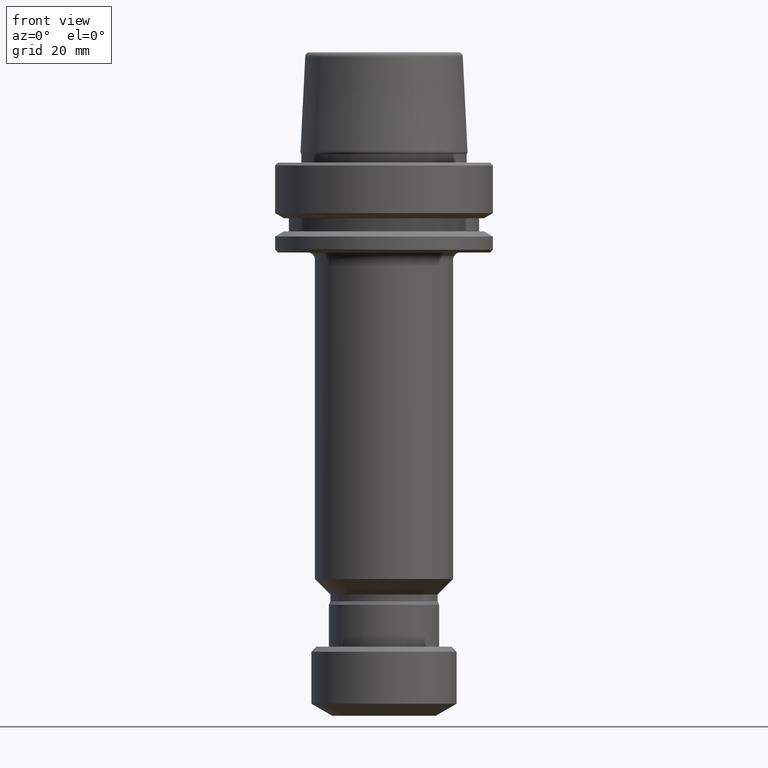
[diagram: clean part render]
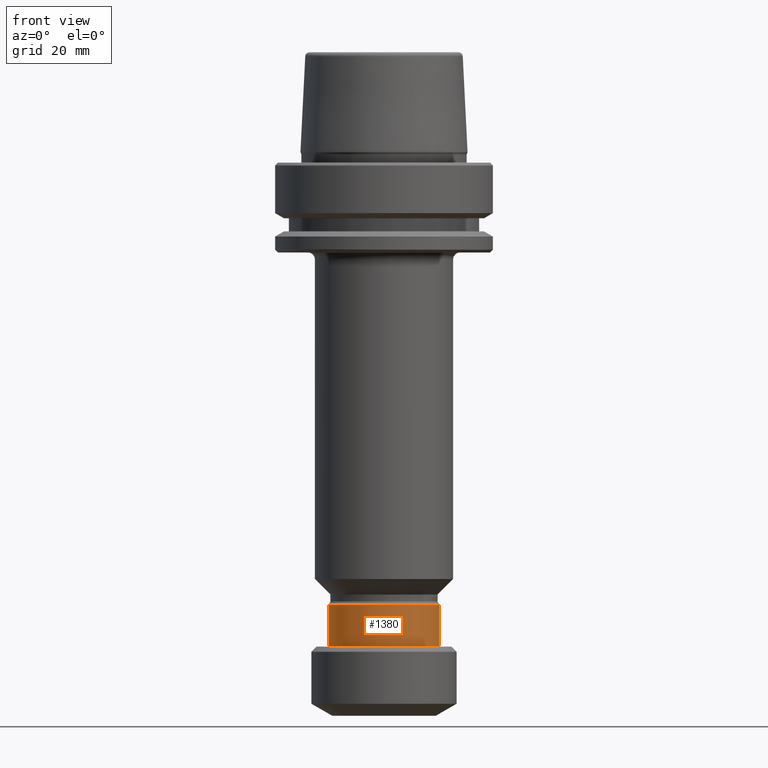
[diagram: same view with one face highlighted and labeled with its STEP entity id]
A machine part, front view. The second image highlights one B-rep face of the part: STEP entity #1380.
In plain terms, the highlighted cylindrical surface (partial cylindrical patch) has radius 15.95 mm, axis along (-0, -0, 1).
Its self-contained STEP definition (entity closure, byte-faithful):
#41 = VERTEX_POINT ( 'NONE', #530 ) ;
#47 = EDGE_CURVE ( 'NONE', #229, #1490, #815, .T. ) ;
#62 = CIRCLE ( 'NONE', #331, 15.94999999999999900 ) ;
#109 = CARTESIAN_POINT ( 'NONE',  ( 15.94999999999999900, 1.953311644640028100E-015, -127.9050281142292100 ) ) ;
#132 = EDGE_CURVE ( 'NONE', #41, #229, #62, .T. ) ;
#199 = DIRECTION ( 'NONE',  ( 1.000000000000000000, 0.0000000000000000000, 0.0000000000000000000 ) ) ;
#207 = DIRECTION ( 'NONE',  ( -0.0000000000000000000, -0.0000000000000000000, 1.000000000000000000 ) ) ;
#210 = CARTESIAN_POINT ( 'NONE',  ( 0.0000000000000000000, 0.0000000000000000000, -127.9050281142292100 ) ) ;
#216 = DIRECTION ( 'NONE',  ( 1.000000000000000000, 0.0000000000000000000, 0.0000000000000000000 ) ) ;
#223 = AXIS2_PLACEMENT_3D ( 'NONE', #210, #207, #199 ) ;
#229 = VERTEX_POINT ( 'NONE', #407 ) ;
#310 = AXIS2_PLACEMENT_3D ( 'NONE', #423, #703, #1422 ) ;
#331 = AXIS2_PLACEMENT_3D ( 'NONE', #1285, #1367, #216 ) ;
#366 = CARTESIAN_POINT ( 'NONE',  ( 15.94999999999999900, 0.0000000000000000000, 67.39773790748995500 ) ) ;
#388 = CIRCLE ( 'NONE', #223, 15.94999999999999900 ) ;
#407 = CARTESIAN_POINT ( 'NONE',  ( 15.94999999999999900, 0.0000000000000000000, -140.0000000000000000 ) ) ;
#423 = CARTESIAN_POINT ( 'NONE',  ( 0.0000000000000000000, 0.0000000000000000000, 67.39773790748995500 ) ) ;
#443 = CARTESIAN_POINT ( 'NONE',  ( -15.94999999999999900, 0.0000000000000000000, -127.9050281142292100 ) ) ;
#509 = ORIENTED_EDGE ( 'NONE', *, *, #1225, .F. ) ;
#530 = CARTESIAN_POINT ( 'NONE',  ( -15.94999999999999900, 1.953311644640028100E-015, -140.0000000000000000 ) ) ;
#564 = FACE_OUTER_BOUND ( 'NONE', #812, .T. ) ;
#581 = LINE ( 'NONE', #787, #1446 ) ;
#610 = CYLINDRICAL_SURFACE ( 'NONE', #310, 15.94999999999999900 ) ;
#703 = DIRECTION ( 'NONE',  ( -0.0000000000000000000, -0.0000000000000000000, 1.000000000000000000 ) ) ;
#778 = VECTOR ( 'NONE', #1150, 1000.000000000000000 ) ;
#787 = CARTESIAN_POINT ( 'NONE',  ( -15.94999999999999900, 1.953311644640028100E-015, 67.39773790748995500 ) ) ;
#812 = EDGE_LOOP ( 'NONE', ( #509, #1204, #1506, #1257 ) ) ;
#815 = LINE ( 'NONE', #366, #778 ) ;
#1150 = DIRECTION ( 'NONE',  ( -0.0000000000000000000, -0.0000000000000000000, 1.000000000000000000 ) ) ;
#1204 = ORIENTED_EDGE ( 'NONE', *, *, #132, .T. ) ;
#1225 = EDGE_CURVE ( 'NONE', #41, #1235, #581, .T. ) ;
#1235 = VERTEX_POINT ( 'NONE', #443 ) ;
#1257 = ORIENTED_EDGE ( 'NONE', *, *, #1406, .F. ) ;
#1285 = CARTESIAN_POINT ( 'NONE',  ( 0.0000000000000000000, 0.0000000000000000000, -140.0000000000000000 ) ) ;
#1323 = DIRECTION ( 'NONE',  ( -0.0000000000000000000, -0.0000000000000000000, 1.000000000000000000 ) ) ;
#1367 = DIRECTION ( 'NONE',  ( -0.0000000000000000000, -0.0000000000000000000, 1.000000000000000000 ) ) ;
#1380 = ADVANCED_FACE ( 'NONE', ( #564 ), #610, .T. ) ;
#1406 = EDGE_CURVE ( 'NONE', #1235, #1490, #388, .T. ) ;
#1422 = DIRECTION ( 'NONE',  ( 1.000000000000000000, 0.0000000000000000000, 0.0000000000000000000 ) ) ;
#1446 = VECTOR ( 'NONE', #1323, 1000.000000000000000 ) ;
#1490 = VERTEX_POINT ( 'NONE', #109 ) ;
#1506 = ORIENTED_EDGE ( 'NONE', *, *, #47, .T. ) ;